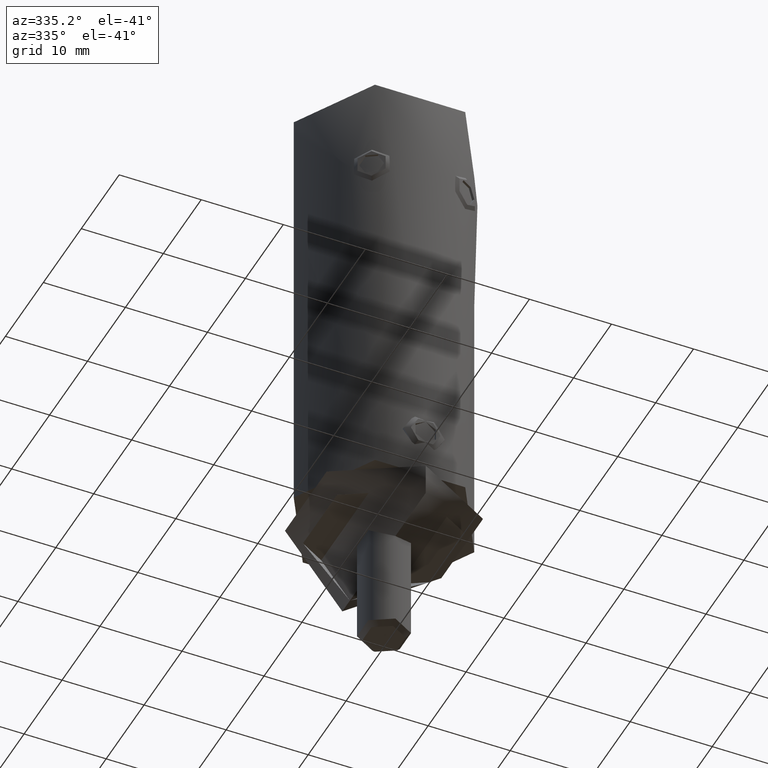
[diagram: clean part render]
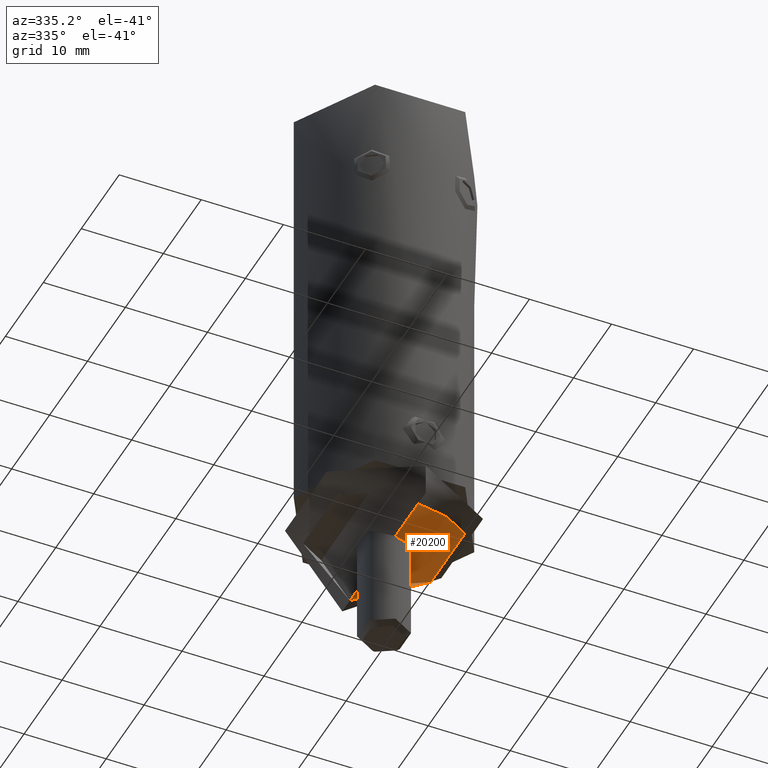
[diagram: same view with one face highlighted and labeled with its STEP entity id]
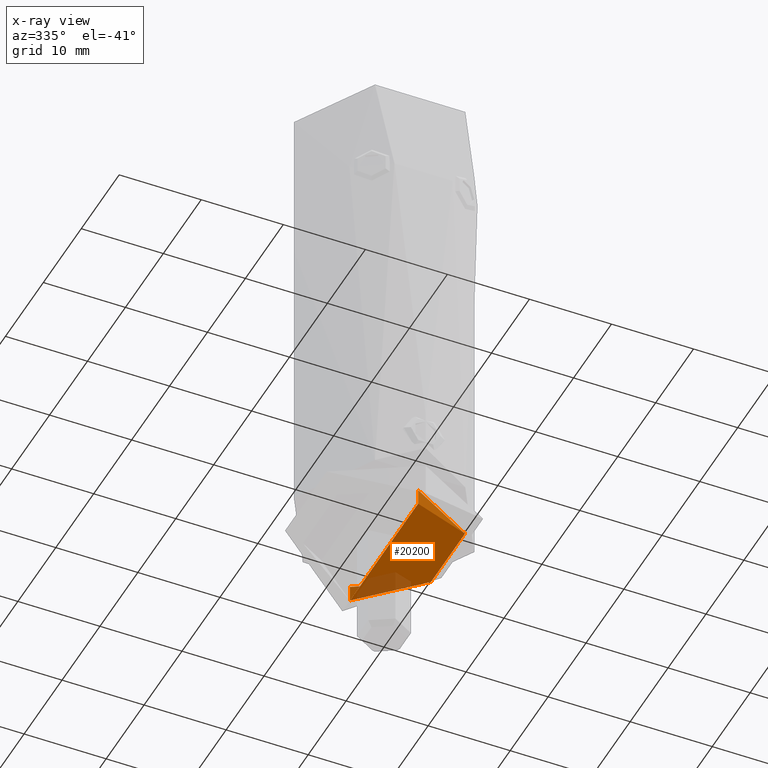
[diagram: x-ray of the same camera — body ghosted, the highlighted face saturated]
A machine part, auxiliary view. The second image highlights one B-rep face of the part: STEP entity #20200.
The next image is the same camera in x-ray: the body ghosted, the highlighted face saturated — about 15% of this face is hidden behind the body in this view.
In plain terms, the highlighted cylindrical surface (partial cylindrical patch) has radius 9 mm, axis along (0, 0, -1).
Its self-contained STEP definition (entity closure, byte-faithful):
#14 = CARTESIAN_POINT ( 'NONE',  ( 1.491460967790996461, 8.880471131629564141, -0.05053315862707020295 ) ) ;
#91 = CARTESIAN_POINT ( 'NONE',  ( 5.492841792478552421, 7.135380700782324226, -0.7226140274287768950 ) ) ;
#169 = CARTESIAN_POINT ( 'NONE',  ( 7.636236501007307886, -4.772041448204879188, -1.422289563636388587 ) ) ;
#1304 = CARTESIAN_POINT ( 'NONE',  ( 5.495492606631188437, -7.133337858995711045, -0.7233263029714064318 ) ) ;
#1525 = DIRECTION ( 'NONE',  ( 0.000000000000000000, 1.000000000000000000, 1.445602896647339163E-16 ) ) ;
#1750 = CARTESIAN_POINT ( 'NONE',  ( -2.400543471972580931E-16, 9.000000000000000000, 0.000000000000000000 ) ) ;
#1891 = CARTESIAN_POINT ( 'NONE',  ( 5.259692949055503775, 7.308904753116185482, -0.6613222603713978520 ) ) ;
#2085 = CARTESIAN_POINT ( 'NONE',  ( 4.528699389792131491, -7.783145565688803558, -0.4876673288471233270 ) ) ;
#2429 = EDGE_CURVE ( 'NONE', #4810, #6351, #4092, .T. ) ;
#2551 = DIRECTION ( 'NONE',  ( -0.000000000000000000, 1.224646799147353700E-16, -1.000000000000000000 ) ) ;
#2917 = ORIENTED_EDGE ( 'NONE', *, *, #10999, .F. ) ;
#2999 = ORIENTED_EDGE ( 'NONE', *, *, #13022, .F. ) ;
#3420 = CARTESIAN_POINT ( 'NONE',  ( 7.149034228485851017, 5.498294302312313420, -1.238742662092875424 ) ) ;
#3484 = CARTESIAN_POINT ( 'NONE',  ( 1.198054577579932722, 8.924912206474560961, -0.03178508186405009511 ) ) ;
#3508 = CARTESIAN_POINT ( 'NONE',  ( 1.102158473109589528E-15, -9.000000000000000000, 5.110839364564302017E-15 ) ) ;
#3552 = CARTESIAN_POINT ( 'NONE',  ( 7.787120209274810634, -4.521893375319816499, -1.481395017640130263 ) ) ;
#3642 = CARTESIAN_POINT ( 'NONE',  ( 5.945509795412033505, -6.762829383680998951, -0.8494344560948320355 ) ) ;
#3735 = ORIENTED_EDGE ( 'NONE', *, *, #2429, .F. ) ;
#4064 = CARTESIAN_POINT ( 'NONE',  ( 0.000000000000000000, 9.000000000000000000, 1.999999999999999556 ) ) ;
#4092 = LINE ( 'NONE', #19256, #13957 ) ;
#4810 = VERTEX_POINT ( 'NONE', #13705 ) ;
#5145 = CARTESIAN_POINT ( 'NONE',  ( 8.193363873119132279, -3.735633294600277932, -1.646896040208375878 ) ) ;
#5301 = CARTESIAN_POINT ( 'NONE',  ( 8.942269996938883025, 1.181348493133579591, -1.977808956071735347 ) ) ;
#5372 = CARTESIAN_POINT ( 'NONE',  ( 8.066124459004578640, -4.003048471266063224, -1.593871881070147989 ) ) ;
#6196 = CARTESIAN_POINT ( 'NONE',  ( 5.262191614882392621, -7.307129957256238484, -0.6619565563388686291 ) ) ;
#6351 = VERTEX_POINT ( 'NONE', #3508 ) ;
#6375 = AXIS2_PLACEMENT_3D ( 'NONE', #6546, #18508, #1525 ) ;
#6546 = CARTESIAN_POINT ( 'NONE',  ( 0.000000000000000000, -2.449293598294700991E-16, 1.999999999999998224 ) ) ;
#6855 = CARTESIAN_POINT ( 'NONE',  ( 2.359948464335841489, 8.705144260624255281, -0.1237513485727914364 ) ) ;
#6988 = CARTESIAN_POINT ( 'NONE',  ( 9.000187751502096489, 0.5905009705526843566, -2.005297072345202825 ) ) ;
#7919 = VERTEX_POINT ( 'NONE', #19789 ) ;
#8721 = CARTESIAN_POINT ( 'NONE',  ( 8.080748568436822765, 4.005806101512834339, -1.598932007725403226 ) ) ;
#9016 = CARTESIAN_POINT ( 'NONE',  ( 6.782893369670295769, -5.944265957912700848, -1.109705084575127509 ) ) ;
#9507 = CARTESIAN_POINT ( 'NONE',  ( 1.102158473109589528E-15, -9.000000000000000000, 5.110839364564302017E-15 ) ) ;
#10239 = CARTESIAN_POINT ( 'NONE',  ( 4.010974858901455775, -8.062168054628070735, -0.3812122465098625179 ) ) ;
#10281 = CARTESIAN_POINT ( 'NONE',  ( 8.532837768163394898, 2.921585112813855467, -1.791469826741908244 ) ) ;
#10359 = CARTESIAN_POINT ( 'NONE',  ( 4.019336509877200037, 8.074508177015532695, -0.3770925065201863879 ) ) ;
#10427 = CARTESIAN_POINT ( 'NONE',  ( 6.780744227032805327, 5.946691944771046678, -1.108980968700559178 ) ) ;
#10499 = CARTESIAN_POINT ( 'NONE',  ( 8.706415660134124934, 2.357563003050735517, -1.869838397457701973 ) ) ;
#10537 = EDGE_CURVE ( 'NONE', #22097, #7919, #13706, .T. ) ;
#10999 = EDGE_CURVE ( 'NONE', #22097, #4810, #15284, .T. ) ;
#11664 = DIRECTION ( 'NONE',  ( -0.000000000000000000, 1.224646799147353700E-16, -1.000000000000000000 ) ) ;
#12017 = CARTESIAN_POINT ( 'NONE',  ( 0.3009189647580848836, 9.000000000000000000, -1.477601919099173060E-17 ) ) ;
#12087 = CARTESIAN_POINT ( 'NONE',  ( 5.943050040245521970, 6.764992603206122723, -0.8487149436210442710 ) ) ;
#12155 = CARTESIAN_POINT ( 'NONE',  ( 6.161153869097447888, 6.567007868193583953, -0.9138700709468901007 ) ) ;
#12207 = CYLINDRICAL_SURFACE ( 'NONE', #6375, 9.000000000000000000 ) ;
#12259 = CARTESIAN_POINT ( 'NONE',  ( 1.188250110291134698, -8.926220304075661360, -0.03123314677760348837 ) ) ;
#13022 = EDGE_CURVE ( 'NONE', #6351, #7919, #13105, .T. ) ;
#13076 = CARTESIAN_POINT ( 'NONE',  ( 0.2964334490521095544, -8.999999999999998224, 3.890739964094221820E-15 ) ) ;
#13105 = B_SPLINE_CURVE_WITH_KNOTS ( 'NONE', 3,
 ( #9507, #13076, #20010, #12259, #13516, #18185, #15011, #22136, #10239, #2085, #16199, #6196, #1304, #3642, #17526, #9016, #14152, #169, #3552, #5372, #5145, #20729, #13791, #18984, #13651, #17226, #15498, #6988, #5301, #10499, #10281, #8721, #17087, #3420, #10427, #12155, #12087, #91, #1891, #13717, #10359, #15565, #6855, #14, #3484, #17153, #12017, #1750 ),
 .UNSPECIFIED., .F., .F.,
 ( 4, 2, 2, 2, 2, 2, 2, 2, 2, 2, 2, 2, 2, 2, 2, 2, 2, 2, 2, 2, 2, 2, 2, 4 ),
 ( 0.02848027258681560744, 0.02936949791033579074, 0.03025872323385597751, 0.03203717388089634410, 0.03292639920441653434, 0.03381562452793671764, 0.03470484985145690093, 0.03559407517497709117, 0.03737252582201746470, 0.03826175114553764800, 0.03915097646905783824, 0.04092942711609821177, 0.04181865243961839507, 0.04270787776313857836, 0.04448632841017895190, 0.04626477905721931849, 0.04804322970425969203, 0.04982168035130006556, 0.05071090567482024886, 0.05160013099834043215, 0.05337858164538079875, 0.05515703229242117922, 0.05604625761594135558, 0.05693548293946154581 ),
 .UNSPECIFIED. ) ;
#13158 = CARTESIAN_POINT ( 'NONE',  ( 0.000000000000000000, 9.000000000000000000, 1.999999999999999556 ) ) ;
#13208 = AXIS2_PLACEMENT_3D ( 'NONE', #20391, #11664, #18469 ) ;
#13516 = CARTESIAN_POINT ( 'NONE',  ( 1.486471490104404269, -8.881374637244256576, -0.05015444881013349232 ) ) ;
#13651 = CARTESIAN_POINT ( 'NONE',  ( 8.925628558626204523, -1.192827234166816686, -1.970485342432201303 ) ) ;
#13705 = CARTESIAN_POINT ( 'NONE',  ( 1.102182119232617714E-15, -9.000000000000000000, 1.999999999999997113 ) ) ;
#13706 = LINE ( 'NONE', #4064, #15020 ) ;
#13717 = CARTESIAN_POINT ( 'NONE',  ( 4.535962555106800131, 7.795054722870341735, -0.4849895838474886367 ) ) ;
#13791 = CARTESIAN_POINT ( 'NONE',  ( 8.704730878304369313, -2.362008123287459682, -1.869084275814923091 ) ) ;
#13957 = VECTOR ( 'NONE', #19842, 1000.000000000000000 ) ;
#14152 = CARTESIAN_POINT ( 'NONE',  ( 7.150489299978477931, -5.496221675087340053, -1.239282207627335097 ) ) ;
#15011 = CARTESIAN_POINT ( 'NONE',  ( 2.924552147243137945, -8.532053850704443221, -0.1954229079065388230 ) ) ;
#15020 = VECTOR ( 'NONE', #2551, 1000.000000000000000 ) ;
#15284 = CIRCLE ( 'NONE', #13208, 9.000000000000000000 ) ;
#15498 = CARTESIAN_POINT ( 'NONE',  ( 8.999905445151094696, -0.2995324990175460278, -2.005164705339569586 ) ) ;
#15565 = CARTESIAN_POINT ( 'NONE',  ( 2.923398892352808254, 8.532671750191315851, -0.1951843288773424390 ) ) ;
#15968 = ORIENTED_EDGE ( 'NONE', *, *, #10537, .T. ) ;
#16199 = CARTESIAN_POINT ( 'NONE',  ( 4.778794297280152925, -7.632033403245351622, -0.5441288213318576927 ) ) ;
#17087 = CARTESIAN_POINT ( 'NONE',  ( 7.798681730541693113, 4.529955176446842202, -1.483482858883810707 ) ) ;
#17153 = CARTESIAN_POINT ( 'NONE',  ( 0.6030836316957837173, 8.984747230574681609, -0.006488074780191454768 ) ) ;
#17226 = CARTESIAN_POINT ( 'NONE',  ( 8.985179175337007607, -0.5968560665887956418, -1.998238770381799867 ) ) ;
#17526 = CARTESIAN_POINT ( 'NONE',  ( 6.163233675632006303, -6.565061745348237388, -0.9145015165310343974 ) ) ;
#18103 = FACE_OUTER_BOUND ( 'NONE', #20101, .T. ) ;
#18185 = CARTESIAN_POINT ( 'NONE',  ( 2.360921398637981117, -8.705153755182521991, -0.1237501564018973210 ) ) ;
#18469 = DIRECTION ( 'NONE',  ( 0.000000000000000000, 1.000000000000000000, 1.445602896647339163E-16 ) ) ;
#18508 = DIRECTION ( 'NONE',  ( -0.000000000000000000, 1.224646799147353700E-16, -1.000000000000000000 ) ) ;
#18984 = CARTESIAN_POINT ( 'NONE',  ( 8.880688484592266008, -1.490378324176697689, -1.949609545792499121 ) ) ;
#19256 = CARTESIAN_POINT ( 'NONE',  ( 1.102182119232617714E-15, -9.000000000000000000, 1.999999999999997113 ) ) ;
#19789 = CARTESIAN_POINT ( 'NONE',  ( -2.400543471972580931E-16, 9.000000000000000000, 0.000000000000000000 ) ) ;
#19842 = DIRECTION ( 'NONE',  ( -0.000000000000000000, 1.224646799147353700E-16, -1.000000000000000000 ) ) ;
#20010 = CARTESIAN_POINT ( 'NONE',  ( 0.5933654931180775138, -8.985391735092925103, -0.006214453234861559011 ) ) ;
#20101 = EDGE_LOOP ( 'NONE', ( #3735, #2917, #15968, #2999 ) ) ;
#20200 = ADVANCED_FACE ( 'NONE', ( #18103 ), #12207, .F. ) ;
#20391 = CARTESIAN_POINT ( 'NONE',  ( 0.000000000000000000, -2.449293598294701484E-16, 1.999999999999998224 ) ) ;
#20729 = CARTESIAN_POINT ( 'NONE',  ( 8.532378343486362482, -2.922873668129468694, -1.791268359766132301 ) ) ;
#22097 = VERTEX_POINT ( 'NONE', #13158 ) ;
#22136 = CARTESIAN_POINT ( 'NONE',  ( 3.742138319472862129, -8.190460172740545275, -0.3310585601990027049 ) ) ;